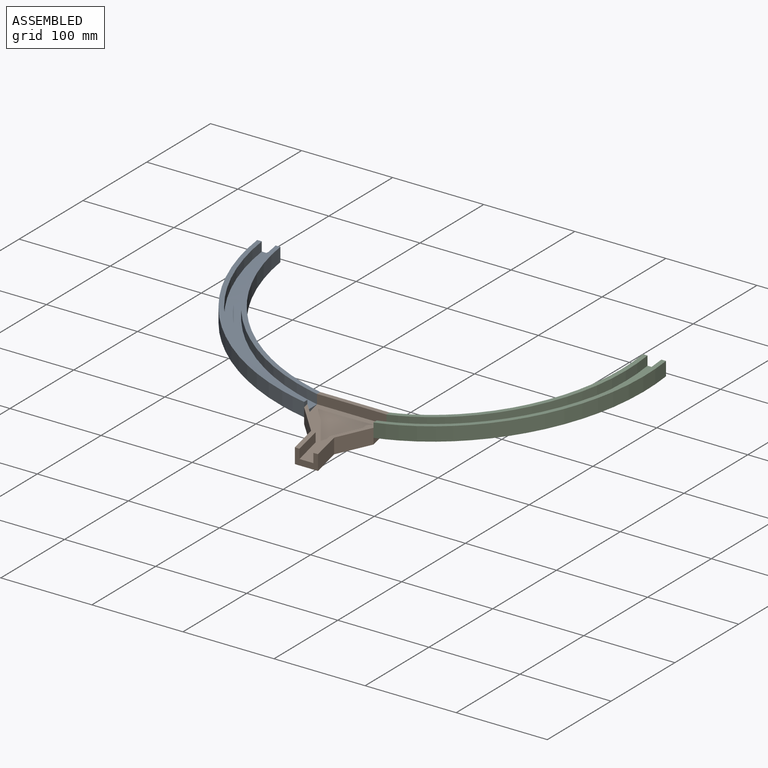
[diagram: assembled view]
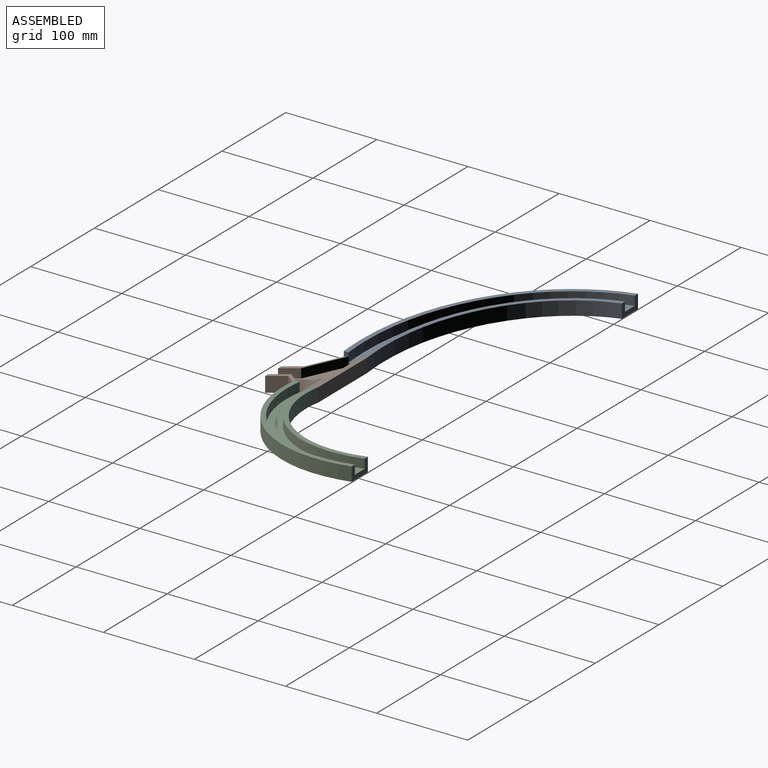
[diagram: assembled view, second angle]
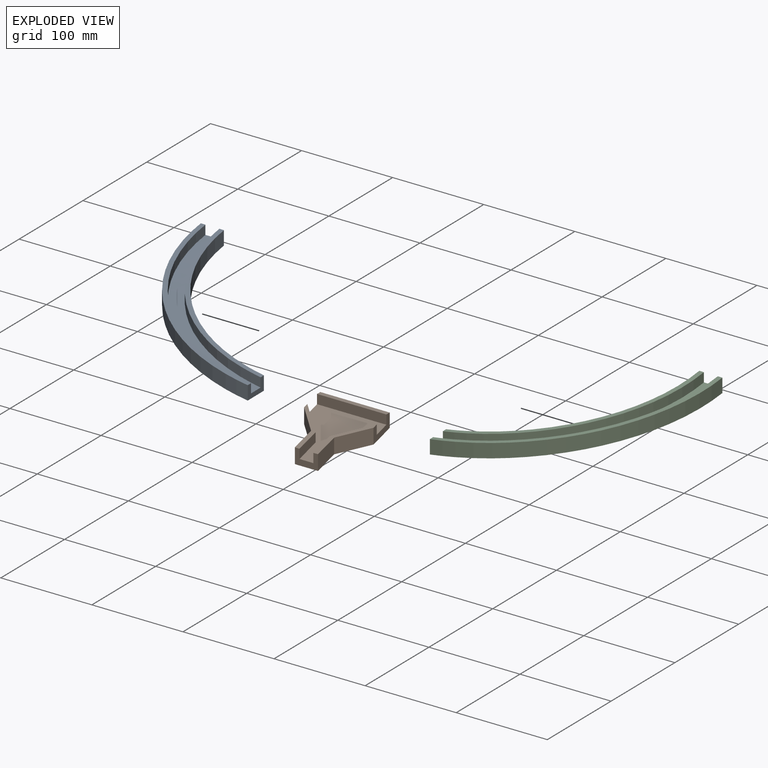
[diagram: exploded view]
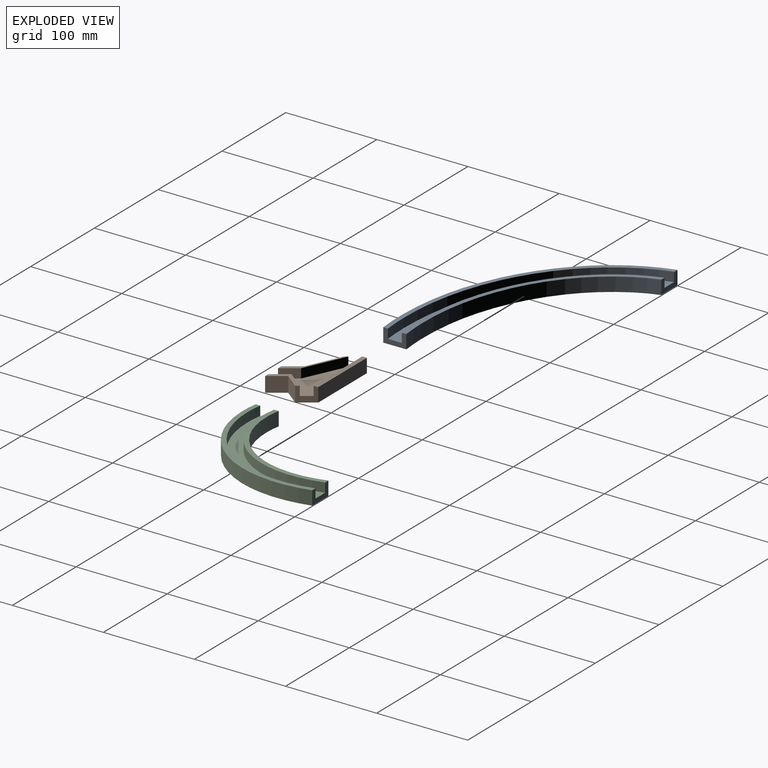
[diagram: exploded view, second angle]
ASSEMBLY  parts=3 mates=4
PART A: 10 faces, bbox 226.1x57.6x195.7 mm
  f0: plane 25.42x15.36mm, normal (1,0,0), area 232.4mm2, adj f2,f3,f4,f5,f6,f7,f8,f9
  f1: plane 25.4x15.24mm, normal (0,0,1), area 232.3mm2, adj f2,f3,f4,f5,f6,f7,f8,f9
  f2: bspline ~226.13x195.65mm, area 7083mm2, adj f0,f1,f3,f9
  f3: cylinder r=192.68mm len=192.57mm, axis (0,1,0), area 4515.7mm2, adj f0,f1,f2,f4
  f4: bspline ~226.13x195.65mm, area 1497mm2, adj f0,f1,f3,f5
  f5: cylinder r=187.6mm len=187.49mm, axis (0,1,0), area 2929.4mm2, adj f0,f1,f4,f6
  f6: bspline ~220.17x190.49mm, area 4249.8mm2, adj f0,f1,f5,f7
  f7: cylinder r=172.36mm len=172.24mm, axis (0,1,0), area 2686.1mm2, adj f0,f1,f6,f8
  f8: bspline ~202.29x175.02mm, area 1336.2mm2, adj f0,f1,f7,f9
  f9: cylinder r=167.28mm len=167.16mm, axis (0,1,0), area 3907.6mm2, adj f0,f1,f2,f8
PART B: 18 faces, bbox 76.2x76.2x35.7 mm
  f0: plane 25.4x23.41mm, normal (-1,0,0), area 421.7mm2, adj f6,f7,f13,f14
  f1: plane 55.88x30.48mm, normal (0,-0.26,0.97), area 280.5mm2, adj f8,f10,f11,f13,f15,f16
  f2: plane 76.2x15.24mm, normal (0,1,0), area 1161.3mm2, adj f3,f7,f8,f9
  f3: plane 76.2x5.08mm, normal (0,0,1), area 387.1mm2, adj f2,f4,f8,f9
  f4: plane 76.2x10.16mm, normal (0,-1,0), area 774.2mm2, adj f3,f5,f8,f9
  f5: plane 76.2x71.12mm, normal (0,-0.26,0.97), area 3045.7mm2, adj f4,f8,f9,f11,f12,f13,f16,f17
  f6: plane 55.88x30.48mm, normal (0,-0.26,0.97), area 280.5mm2, adj f0,f9,f12,f13,f14,f17
  f7: plane 76.2x76.2mm, normal (0,0.26,-0.97), area 4007.5mm2, adj f0,f2,f8,f9,f10,f13,f14,f15
  f8: plane 25.4x22.05mm, normal (1,0,0), area 263.4mm2, adj f1,f2,f3,f4,f5,f7,f15,f16
  f9: plane 25.4x22.05mm, normal (-1,0,0), area 263.4mm2, adj f2,f3,f4,f5,f6,f7,f14,f17
  f10: plane 25.4x23.41mm, normal (1,0,0), area 421.7mm2, adj f1,f7,f13,f15
  f11: plane 25.4x16.97mm, normal (-1,0,0), area 258.1mm2, adj f1,f5,f13,f16
  f12: plane 25.4x16.97mm, normal (1,0,0), area 258.1mm2, adj f5,f6,f13,f17
  f13: plane 25.4x16.6mm, normal (0,-1,0), area 266.8mm2, adj f0,f1,f5,f6,f7,f10,f11,f12
  f14: plane 25.4x25.4mm, normal (-0.71,-0.71,0), area 596.3mm2, adj f0,f6,f7,f9
  f15: plane 25.4x25.4mm, normal (0.71,-0.71,0), area 596.3mm2, adj f1,f7,f8,f10
  f16: plane 30.48x30.48mm, normal (-0.71,0.71,0), area 437.9mm2, adj f1,f5,f8,f11
  f17: plane 30.48x30.48mm, normal (0.71,0.71,0), area 437.9mm2, adj f5,f6,f9,f12
PART C: 10 faces, bbox 226.1x57.6x195.7 mm
  f0: plane 25.42x15.36mm, normal (1,0,0), area 232.4mm2, adj f2,f3,f4,f5,f6,f7,f8,f9
  f1: plane 25.4x15.24mm, normal (0,0,-1), area 232.3mm2, adj f2,f3,f4,f5,f6,f7,f8,f9
  f2: bspline ~226.13x195.65mm, area 7083mm2, adj f0,f1,f3,f9
  f3: cylinder r=167.28mm len=167.16mm, axis (0,1,0), area 3907.6mm2, adj f0,f1,f2,f4
  f4: bspline ~202.29x175.02mm, area 1336.2mm2, adj f0,f1,f3,f5
  f5: cylinder r=172.36mm len=172.24mm, axis (0,1,0), area 2686.1mm2, adj f0,f1,f4,f6
  f6: bspline ~220.17x190.49mm, area 4249.8mm2, adj f0,f1,f5,f7
  f7: cylinder r=187.6mm len=187.49mm, axis (0,1,0), area 2929.4mm2, adj f0,f1,f6,f8
  f8: bspline ~226.13x195.65mm, area 1497mm2, adj f0,f1,f7,f9
  f9: cylinder r=192.68mm len=192.57mm, axis (0,1,0), area 4515.7mm2, adj f0,f1,f2,f8
PLACE A rot(axis=(-1,0,0),90deg) t=(-31.75,179.71,-39.03)mm
PLACE B at identity fixed
PLACE C rot(axis=(0,-0.71,0.71),180deg) t=(31.75,179.71,-39.03)mm
MATE planar C.f0 <-> B.f8  axis (-1,0,0) through (38.1,-0.15,5.01)mm
MATE planar A.f0 <-> B.f9  axis (1,0,0) through (-38.1,-0.15,5.01)mm
MATE fastened A.f0 <-> B.f9  axis (1,0,0) through (-38.1,12.56,15.24)mm
MATE fastened C.f0 <-> B.f8  axis (-1,0,0) through (38.1,12.56,15.24)mm
